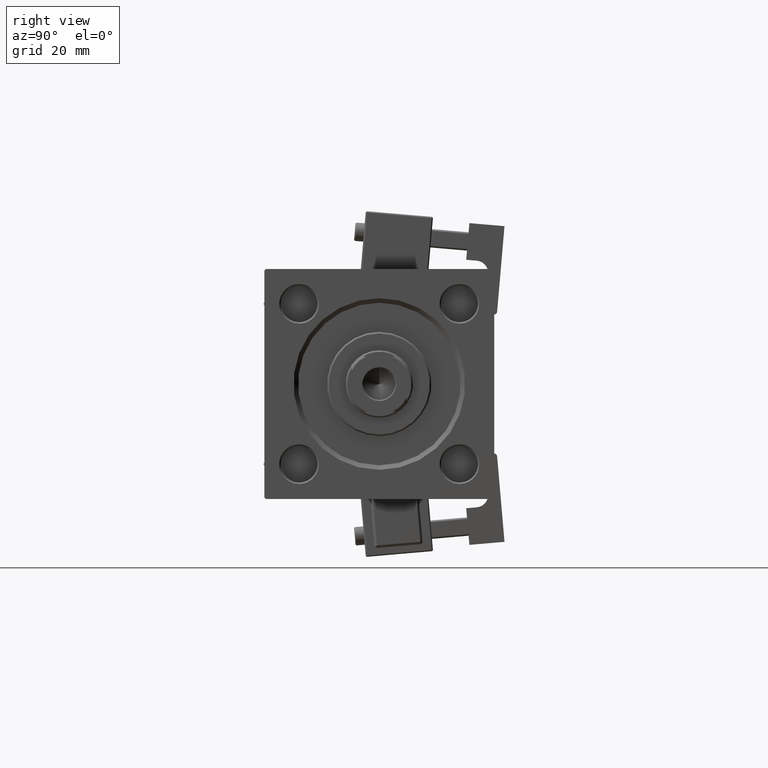
[diagram: clean part render]
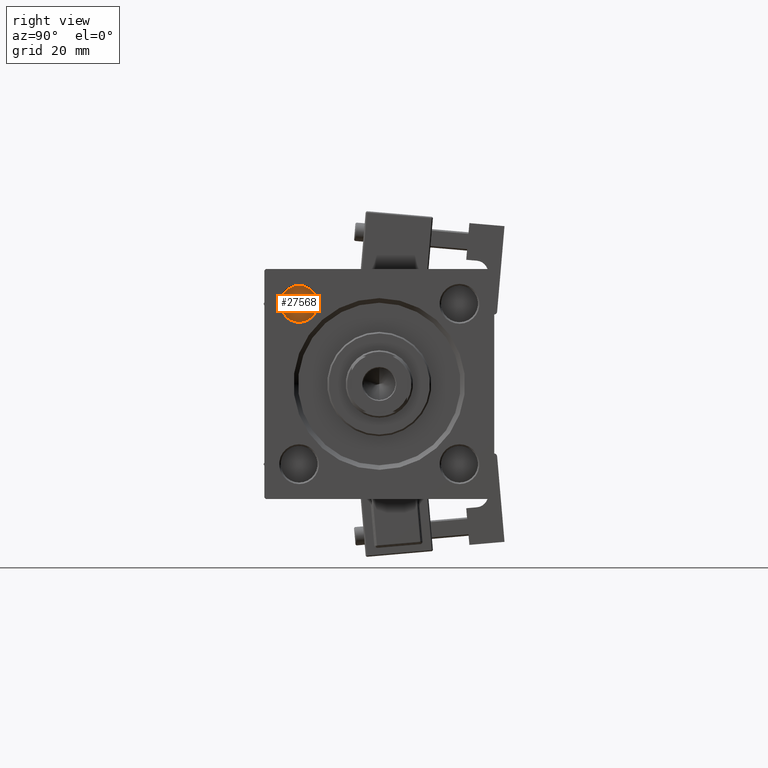
[diagram: same view with one face highlighted and labeled with its STEP entity id]
A machine part, right view. The second image highlights one B-rep face of the part: STEP entity #27568.
In plain terms, the highlighted planar face has unit normal (1, 0, 0).
Its self-contained STEP definition (entity closure, byte-faithful):
#7743 = CARTESIAN_POINT ( 'NONE',  ( 129.0000000000000000, -26.14999999999999147, 26.14999999999999503 ) ) ;
#8214 = ORIENTED_EDGE ( 'NONE', *, *, #51341, .T. ) ;
#9258 = DIRECTION ( 'NONE',  ( 0.000000000000000000, 0.000000000000000000, -1.000000000000000000 ) ) ;
#9516 = CARTESIAN_POINT ( 'NONE',  ( 129.0000000000000000, -26.14999999999999147, 26.14999999999999503 ) ) ;
#12971 = PLANE ( 'NONE',  #45321 ) ;
#16625 = DIRECTION ( 'NONE',  ( 1.000000000000000000, 0.000000000000000000, 0.000000000000000000 ) ) ;
#17516 = CARTESIAN_POINT ( 'NONE',  ( 129.0000000000000000, -26.14999999999999147, 20.14999999999999858 ) ) ;
#19652 = EDGE_CURVE ( 'NONE', #46162, #51132, #23093, .T. ) ;
#23093 = CIRCLE ( 'NONE', #51018, 5.999999999999998224 ) ;
#27568 = ADVANCED_FACE ( 'NONE', ( #33108 ), #12971, .T. ) ;
#28393 = DIRECTION ( 'NONE',  ( 0.000000000000000000, 0.000000000000000000, -1.000000000000000000 ) ) ;
#28880 = DIRECTION ( 'NONE',  ( 1.000000000000000000, 0.000000000000000000, 0.000000000000000000 ) ) ;
#32896 = EDGE_LOOP ( 'NONE', ( #8214, #32903 ) ) ;
#32903 = ORIENTED_EDGE ( 'NONE', *, *, #19652, .T. ) ;
#33108 = FACE_OUTER_BOUND ( 'NONE', #32896, .T. ) ;
#37037 = DIRECTION ( 'NONE',  ( 0.000000000000000000, 0.000000000000000000, -1.000000000000000000 ) ) ;
#39549 = AXIS2_PLACEMENT_3D ( 'NONE', #44445, #16625, #37037 ) ;
#42909 = CARTESIAN_POINT ( 'NONE',  ( 129.0000000000000000, -26.14999999999999147, 32.14999999999999858 ) ) ;
#44445 = CARTESIAN_POINT ( 'NONE',  ( 129.0000000000000000, -26.14999999999999147, 26.14999999999999503 ) ) ;
#44612 = CIRCLE ( 'NONE', #39549, 5.999999999999998224 ) ;
#44822 = DIRECTION ( 'NONE',  ( 1.000000000000000000, 0.000000000000000000, 0.000000000000000000 ) ) ;
#45321 = AXIS2_PLACEMENT_3D ( 'NONE', #9516, #28880, #9258 ) ;
#46162 = VERTEX_POINT ( 'NONE', #42909 ) ;
#51018 = AXIS2_PLACEMENT_3D ( 'NONE', #7743, #44822, #28393 ) ;
#51132 = VERTEX_POINT ( 'NONE', #17516 ) ;
#51341 = EDGE_CURVE ( 'NONE', #51132, #46162, #44612, .T. ) ;